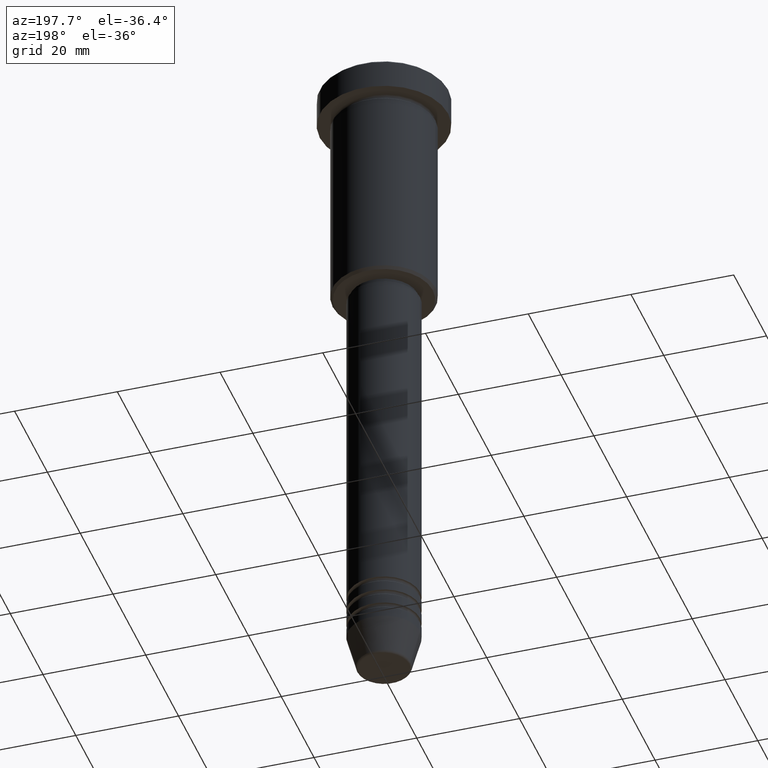
[diagram: clean part render]
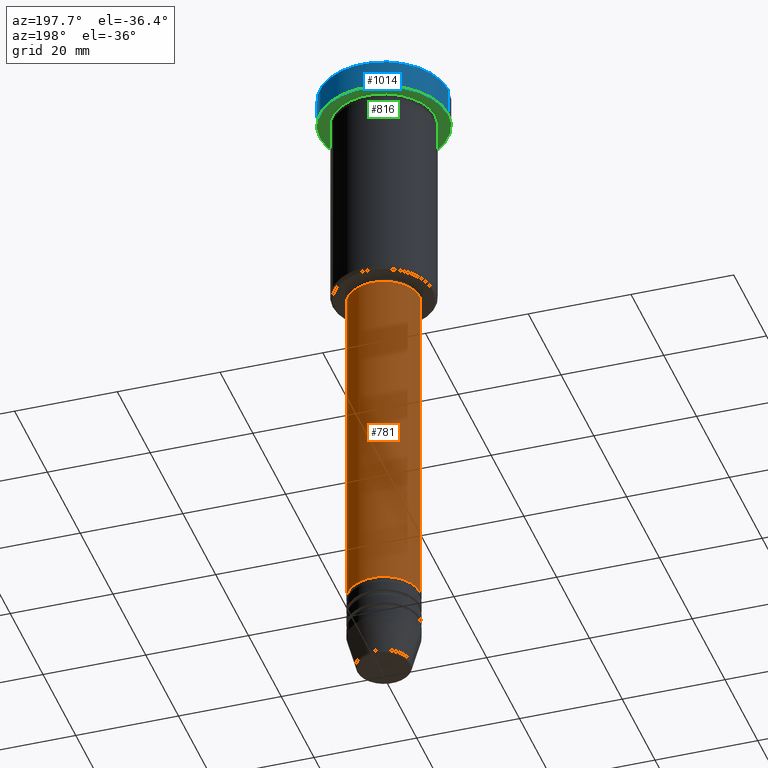
[diagram: same view with three faces highlighted in distinct colors, each labeled with its STEP entity id]
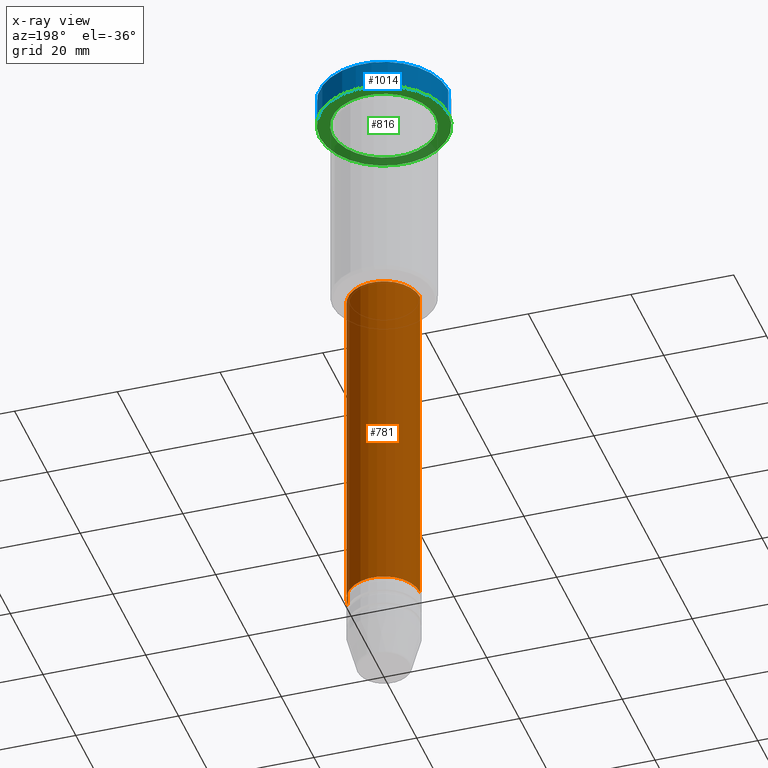
[diagram: x-ray of the same camera — body ghosted, the three highlighted faces saturated]
A machine part, auxiliary view with three faces highlighted in distinct colors.
The next image is the same camera in x-ray (body ghosted, the three faces saturated) — at least one of them is partly hidden behind the body in this view.
Their STEP definitions:

[orange] entity #781 — the highlighted cylindrical surface (partial cylindrical patch) has radius 7 mm, axis along (-0, -0, 1).
#65 = DIRECTION ( 'NONE',  ( -0.000000000000000000, -0.000000000000000000, 1.000000000000000000 ) ) ;
#83 = CYLINDRICAL_SURFACE ( 'NONE', #271, 7.000000000000000000 ) ;
#86 = AXIS2_PLACEMENT_3D ( 'NONE', #954, #495, #695 ) ;
#142 = VERTEX_POINT ( 'NONE', #716 ) ;
#151 = DIRECTION ( 'NONE',  ( -0.000000000000000000, -0.000000000000000000, 1.000000000000000000 ) ) ;
#216 = ORIENTED_EDGE ( 'NONE', *, *, #217, .T. ) ;
#217 = EDGE_CURVE ( 'NONE', #489, #458, #1022, .T. ) ;
#237 = CARTESIAN_POINT ( 'NONE',  ( 0.000000000000000000, 0.000000000000000000, -46.99999999999999289 ) ) ;
#256 = ORIENTED_EDGE ( 'NONE', *, *, #292, .F. ) ;
#271 = AXIS2_PLACEMENT_3D ( 'NONE', #272, #540, #374 ) ;
#272 = CARTESIAN_POINT ( 'NONE',  ( 0.000000000000000000, 0.000000000000000000, 0.000000000000000000 ) ) ;
#292 = EDGE_CURVE ( 'NONE', #489, #514, #536, .T. ) ;
#344 = ORIENTED_EDGE ( 'NONE', *, *, #382, .T. ) ;
#346 = CARTESIAN_POINT ( 'NONE',  ( 7.000000000000000000, 0.000000000000000000, -46.99999999999999289 ) ) ;
#372 = CARTESIAN_POINT ( 'NONE',  ( 7.000000000000000000, 0.000000000000000000, -114.9999999999999574 ) ) ;
#374 = DIRECTION ( 'NONE',  ( 1.000000000000000000, 0.000000000000000000, 0.000000000000000000 ) ) ;
#382 = EDGE_CURVE ( 'NONE', #458, #142, #1096, .T. ) ;
#458 = VERTEX_POINT ( 'NONE', #534 ) ;
#462 = CARTESIAN_POINT ( 'NONE',  ( 7.000000000000000000, 0.000000000000000000, 0.000000000000000000 ) ) ;
#489 = VERTEX_POINT ( 'NONE', #372 ) ;
#495 = DIRECTION ( 'NONE',  ( -0.000000000000000000, -0.000000000000000000, 1.000000000000000000 ) ) ;
#502 = EDGE_LOOP ( 'NONE', ( #216, #344, #1104, #256 ) ) ;
#514 = VERTEX_POINT ( 'NONE', #346 ) ;
#534 = CARTESIAN_POINT ( 'NONE',  ( -7.000000000000000000, 8.572527594031473190E-16, -114.9999999999999574 ) ) ;
#536 = LINE ( 'NONE', #462, #767 ) ;
#540 = DIRECTION ( 'NONE',  ( -0.000000000000000000, -0.000000000000000000, 1.000000000000000000 ) ) ;
#551 = FACE_OUTER_BOUND ( 'NONE', #502, .T. ) ;
#558 = DIRECTION ( 'NONE',  ( -0.000000000000000000, -0.000000000000000000, 1.000000000000000000 ) ) ;
#664 = CIRCLE ( 'NONE', #1170, 7.000000000000000000 ) ;
#667 = EDGE_CURVE ( 'NONE', #514, #142, #664, .T. ) ;
#688 = DIRECTION ( 'NONE',  ( 1.000000000000000000, 0.000000000000000000, 0.000000000000000000 ) ) ;
#695 = DIRECTION ( 'NONE',  ( 1.000000000000000000, 0.000000000000000000, 0.000000000000000000 ) ) ;
#716 = CARTESIAN_POINT ( 'NONE',  ( -7.000000000000000000, 8.572527594031473190E-16, -46.99999999999999289 ) ) ;
#767 = VECTOR ( 'NONE', #558, 1000.000000000000000 ) ;
#781 = ADVANCED_FACE ( 'NONE', ( #551 ), #83, .T. ) ;
#873 = VECTOR ( 'NONE', #151, 1000.000000000000000 ) ;
#954 = CARTESIAN_POINT ( 'NONE',  ( 0.000000000000000000, 0.000000000000000000, -114.9999999999999574 ) ) ;
#974 = CARTESIAN_POINT ( 'NONE',  ( -7.000000000000000000, 8.572527594031473190E-16, 0.000000000000000000 ) ) ;
#1022 = CIRCLE ( 'NONE', #86, 7.000000000000000000 ) ;
#1096 = LINE ( 'NONE', #974, #873 ) ;
#1104 = ORIENTED_EDGE ( 'NONE', *, *, #667, .F. ) ;
#1170 = AXIS2_PLACEMENT_3D ( 'NONE', #237, #65, #688 ) ;

[blue] entity #1014 — the highlighted cylindrical surface (partial cylindrical patch) has radius 12.5 mm, axis along (-0, -0, 1).
#11 = AXIS2_PLACEMENT_3D ( 'NONE', #423, #321, #612 ) ;
#12 = ORIENTED_EDGE ( 'NONE', *, *, #1145, .F. ) ;
#90 = CIRCLE ( 'NONE', #909, 12.50000000000000000 ) ;
#96 = CARTESIAN_POINT ( 'NONE',  ( 12.50000000000000000, 0.000000000000000000, 0.000000000000000000 ) ) ;
#108 = VECTOR ( 'NONE', #364, 1000.000000000000000 ) ;
#111 = CARTESIAN_POINT ( 'NONE',  ( -12.50000000000000000, 1.530808498934191521E-15, -0.4999999999999917843 ) ) ;
#238 = EDGE_CURVE ( 'NONE', #834, #831, #351, .T. ) ;
#298 = VECTOR ( 'NONE', #787, 1000.000000000000000 ) ;
#321 = DIRECTION ( 'NONE',  ( -0.000000000000000000, -0.000000000000000000, 1.000000000000000000 ) ) ;
#351 = CIRCLE ( 'NONE', #1081, 12.50000000000000000 ) ;
#364 = DIRECTION ( 'NONE',  ( -0.000000000000000000, -0.000000000000000000, 1.000000000000000000 ) ) ;
#385 = CARTESIAN_POINT ( 'NONE',  ( 12.50000000000000000, 0.000000000000000000, -0.4999999999999917843 ) ) ;
#409 = LINE ( 'NONE', #687, #298 ) ;
#423 = CARTESIAN_POINT ( 'NONE',  ( 0.000000000000000000, 0.000000000000000000, 0.000000000000000000 ) ) ;
#424 = DIRECTION ( 'NONE',  ( 0.000000000000000000, 0.000000000000000000, -1.000000000000000000 ) ) ;
#523 = CYLINDRICAL_SURFACE ( 'NONE', #11, 12.50000000000000000 ) ;
#553 = VERTEX_POINT ( 'NONE', #671 ) ;
#590 = CARTESIAN_POINT ( 'NONE',  ( 0.000000000000000000, 0.000000000000000000, -5.999999999999996447 ) ) ;
#612 = DIRECTION ( 'NONE',  ( 1.000000000000000000, 0.000000000000000000, 0.000000000000000000 ) ) ;
#631 = EDGE_LOOP ( 'NONE', ( #636, #1095, #673, #12 ) ) ;
#636 = ORIENTED_EDGE ( 'NONE', *, *, #880, .T. ) ;
#658 = DIRECTION ( 'NONE',  ( -0.000000000000000000, -0.000000000000000000, 1.000000000000000000 ) ) ;
#671 = CARTESIAN_POINT ( 'NONE',  ( 12.50000000000000000, 0.000000000000000000, -5.999999999999996447 ) ) ;
#673 = ORIENTED_EDGE ( 'NONE', *, *, #238, .T. ) ;
#685 = VERTEX_POINT ( 'NONE', #959 ) ;
#687 = CARTESIAN_POINT ( 'NONE',  ( -12.50000000000000000, 1.530808498934191521E-15, 0.000000000000000000 ) ) ;
#787 = DIRECTION ( 'NONE',  ( -0.000000000000000000, -0.000000000000000000, 1.000000000000000000 ) ) ;
#831 = VERTEX_POINT ( 'NONE', #385 ) ;
#834 = VERTEX_POINT ( 'NONE', #111 ) ;
#880 = EDGE_CURVE ( 'NONE', #553, #685, #90, .T. ) ;
#886 = CARTESIAN_POINT ( 'NONE',  ( 0.000000000000000000, 0.000000000000000000, -0.4999999999999917843 ) ) ;
#909 = AXIS2_PLACEMENT_3D ( 'NONE', #590, #658, #1111 ) ;
#959 = CARTESIAN_POINT ( 'NONE',  ( -12.50000000000000000, 1.530808498934191521E-15, -5.999999999999996447 ) ) ;
#972 = DIRECTION ( 'NONE',  ( 1.000000000000000000, 0.000000000000000000, 0.000000000000000000 ) ) ;
#989 = LINE ( 'NONE', #96, #108 ) ;
#1014 = ADVANCED_FACE ( 'NONE', ( #1146 ), #523, .T. ) ;
#1076 = EDGE_CURVE ( 'NONE', #685, #834, #409, .T. ) ;
#1081 = AXIS2_PLACEMENT_3D ( 'NONE', #886, #424, #972 ) ;
#1095 = ORIENTED_EDGE ( 'NONE', *, *, #1076, .T. ) ;
#1111 = DIRECTION ( 'NONE',  ( 1.000000000000000000, 0.000000000000000000, 0.000000000000000000 ) ) ;
#1145 = EDGE_CURVE ( 'NONE', #553, #831, #989, .T. ) ;
#1146 = FACE_OUTER_BOUND ( 'NONE', #631, .T. ) ;

[green] entity #816 — the highlighted planar face has unit normal (0, 0, -1).
#14 = ORIENTED_EDGE ( 'NONE', *, *, #277, .T. ) ;
#17 = VERTEX_POINT ( 'NONE', #960 ) ;
#90 = CIRCLE ( 'NONE', #909, 12.50000000000000000 ) ;
#101 = DIRECTION ( 'NONE',  ( 1.000000000000000000, 0.000000000000000000, 0.000000000000000000 ) ) ;
#155 = CARTESIAN_POINT ( 'NONE',  ( 0.000000000000000000, 0.000000000000000000, -5.999999999999996447 ) ) ;
#186 = PLANE ( 'NONE',  #1083 ) ;
#198 = VERTEX_POINT ( 'NONE', #1045 ) ;
#202 = EDGE_CURVE ( 'NONE', #198, #17, #603, .T. ) ;
#214 = CARTESIAN_POINT ( 'NONE',  ( 0.000000000000000000, 0.000000000000000000, -5.999999999999996447 ) ) ;
#250 = CIRCLE ( 'NONE', #331, 12.50000000000000000 ) ;
#257 = DIRECTION ( 'NONE',  ( -1.000000000000000000, 0.000000000000000000, 0.000000000000000000 ) ) ;
#277 = EDGE_CURVE ( 'NONE', #17, #198, #567, .T. ) ;
#327 = ORIENTED_EDGE ( 'NONE', *, *, #202, .T. ) ;
#331 = AXIS2_PLACEMENT_3D ( 'NONE', #614, #1016, #101 ) ;
#468 = DIRECTION ( 'NONE',  ( 0.000000000000000000, 0.000000000000000000, -1.000000000000000000 ) ) ;
#505 = DIRECTION ( 'NONE',  ( -0.000000000000000000, -0.000000000000000000, 1.000000000000000000 ) ) ;
#553 = VERTEX_POINT ( 'NONE', #671 ) ;
#562 = CARTESIAN_POINT ( 'NONE',  ( 0.000000000000000000, 12.50000000000000000, -5.999999999999996447 ) ) ;
#567 = CIRCLE ( 'NONE', #582, 10.00000000000000000 ) ;
#582 = AXIS2_PLACEMENT_3D ( 'NONE', #155, #722, #257 ) ;
#590 = CARTESIAN_POINT ( 'NONE',  ( 0.000000000000000000, 0.000000000000000000, -5.999999999999996447 ) ) ;
#600 = EDGE_LOOP ( 'NONE', ( #851, #814 ) ) ;
#603 = CIRCLE ( 'NONE', #1153, 10.00000000000000000 ) ;
#614 = CARTESIAN_POINT ( 'NONE',  ( 0.000000000000000000, 0.000000000000000000, -5.999999999999996447 ) ) ;
#630 = FACE_BOUND ( 'NONE', #1130, .T. ) ;
#658 = DIRECTION ( 'NONE',  ( -0.000000000000000000, -0.000000000000000000, 1.000000000000000000 ) ) ;
#671 = CARTESIAN_POINT ( 'NONE',  ( 12.50000000000000000, 0.000000000000000000, -5.999999999999996447 ) ) ;
#685 = VERTEX_POINT ( 'NONE', #959 ) ;
#702 = DIRECTION ( 'NONE',  ( -1.000000000000000000, 0.000000000000000000, 0.000000000000000000 ) ) ;
#704 = EDGE_CURVE ( 'NONE', #685, #553, #250, .T. ) ;
#722 = DIRECTION ( 'NONE',  ( -0.000000000000000000, -0.000000000000000000, 1.000000000000000000 ) ) ;
#814 = ORIENTED_EDGE ( 'NONE', *, *, #704, .F. ) ;
#816 = ADVANCED_FACE ( 'NONE', ( #630, #1017 ), #186, .T. ) ;
#845 = DIRECTION ( 'NONE',  ( -1.000000000000000000, 0.000000000000000000, -0.000000000000000000 ) ) ;
#851 = ORIENTED_EDGE ( 'NONE', *, *, #880, .F. ) ;
#880 = EDGE_CURVE ( 'NONE', #553, #685, #90, .T. ) ;
#909 = AXIS2_PLACEMENT_3D ( 'NONE', #590, #658, #1111 ) ;
#959 = CARTESIAN_POINT ( 'NONE',  ( -12.50000000000000000, 1.530808498934191521E-15, -5.999999999999996447 ) ) ;
#960 = CARTESIAN_POINT ( 'NONE',  ( -10.00000000000000000, 0.000000000000000000, -5.999999999999996447 ) ) ;
#1016 = DIRECTION ( 'NONE',  ( -0.000000000000000000, -0.000000000000000000, 1.000000000000000000 ) ) ;
#1017 = FACE_OUTER_BOUND ( 'NONE', #600, .T. ) ;
#1045 = CARTESIAN_POINT ( 'NONE',  ( 10.00000000000000000, 1.224646799147353256E-15, -5.999999999999996447 ) ) ;
#1083 = AXIS2_PLACEMENT_3D ( 'NONE', #562, #468, #845 ) ;
#1111 = DIRECTION ( 'NONE',  ( 1.000000000000000000, 0.000000000000000000, 0.000000000000000000 ) ) ;
#1130 = EDGE_LOOP ( 'NONE', ( #14, #327 ) ) ;
#1153 = AXIS2_PLACEMENT_3D ( 'NONE', #214, #505, #702 ) ;